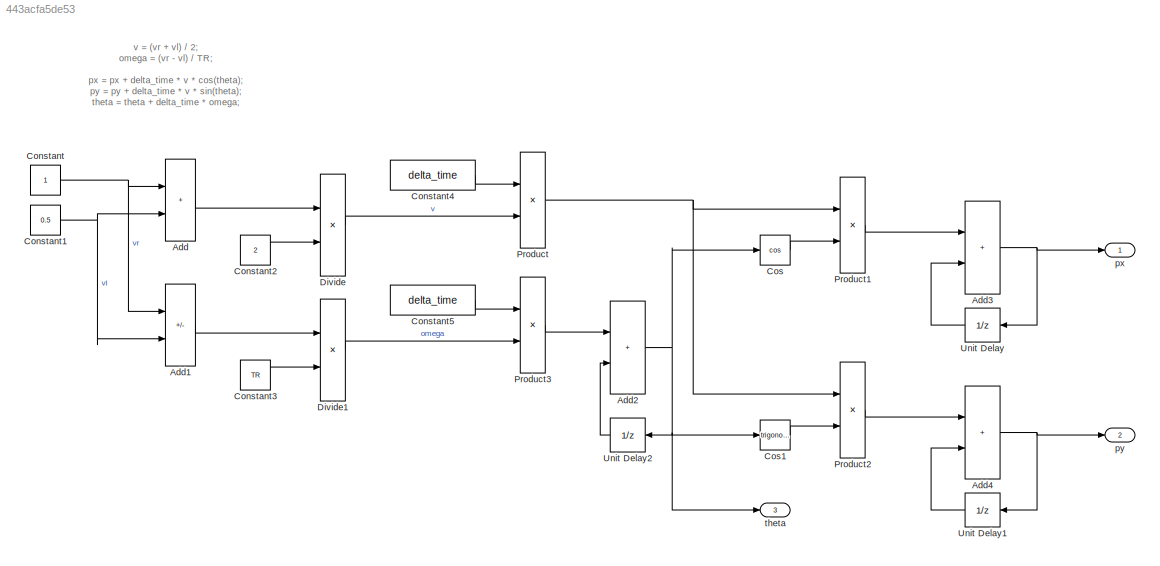
MODEL slx_443acfa5de53
KIND model
CONFIG AbsTol = auto
CONFIG EnableMultiTasking = off
CONFIG FixedStep = delta_time
CONFIG MaxStep = auto
CONFIG MinStep = auto
CONFIG RelTol = 1e-3
CONFIG SampleTimeConstraint = Unconstrained
CONFIG SolverName = FixedStepDiscrete
CONFIG StartTime = 0.0
CONFIG StopTime = 10.0
WORKSPACE source: mxarray member
WORKSPACE TR: Simulink.Parameter (value not decoded)
WORKSPACE delta_time: Simulink.Parameter (value not decoded)
BLOCK [Sum] Add
  IconShape = rectangular
BLOCK [Sum] Add1
  IconShape = rectangular
  Inputs = +-
BLOCK [Sum] Add2
  IconShape = rectangular
BLOCK [Sum] Add3
  IconShape = rectangular
BLOCK [Sum] Add4
  IconShape = rectangular
BLOCK [Constant] Constant
BLOCK [Constant] Constant1
  Value = 0.5
BLOCK [Constant] Constant2
  Value = 2
BLOCK [Constant] Constant3
  Value = TR
BLOCK [Constant] Constant4
  Value = delta_time
BLOCK [Constant] Constant5
  Value = delta_time
BLOCK [Trigonometry] Cos
  Operator = cos
BLOCK [Trigonometry] Cos1
BLOCK [Product] Divide
  Inputs = */
BLOCK [Product] Divide1
  Inputs = */
BLOCK [Product] Product
BLOCK [Product] Product1
BLOCK [Product] Product2
BLOCK [Product] Product3
BLOCK [UnitDelay] Unit Delay
  HasFrameUpgradeWarning = on
  SampleTime = -1
BLOCK [UnitDelay] Unit Delay1
  HasFrameUpgradeWarning = on
  SampleTime = -1
BLOCK [UnitDelay] Unit Delay2
  HasFrameUpgradeWarning = on
  SampleTime = -1
BLOCK [Outport] px
BLOCK [Outport] py
  Port = 2
BLOCK [Outport] theta
  Port = 3
ANNOTATION (root): v = (vr + vl) / 2; omega = (vr - vl) / TR; px = px + delta_time * v * cos(theta); py = py + delta_time * v * sin(theta); theta = theta + delta_time * omega;
LINE Add1:1 -> Divide1:1
NET Add2:1 -> Cos1:1, Cos:1, Unit Delay2:1, theta:1
NET Add3:1 -> Unit Delay:1, px:1
NET Add4:1 -> Unit Delay1:1, py:1
LINE Add:1 -> Divide:1
NET Constant1:1 -> Add1:2, Add:2
LINE Constant2:1 -> Divide:2
LINE Constant3:1 -> Divide1:2
LINE Constant4:1 -> Product:1
LINE Constant5:1 -> Product3:1
NET Constant:1 -> Add1:1, Add:1
LINE Cos1:1 -> Product2:2
LINE Cos:1 -> Product1:2
LINE Divide1:1 -> Product3:2
LINE Divide:1 -> Product:2
LINE Product1:1 -> Add3:1
LINE Product2:1 -> Add4:1
LINE Product3:1 -> Add2:1
NET Product:1 -> Product1:1, Product2:1
LINE Unit Delay1:1 -> Add4:2
LINE Unit Delay2:1 -> Add2:2
LINE Unit Delay:1 -> Add3:2
note: NET lines group one-source signal fan-out (src -> all destinations, sorted); 1:1 wires keep LINE
